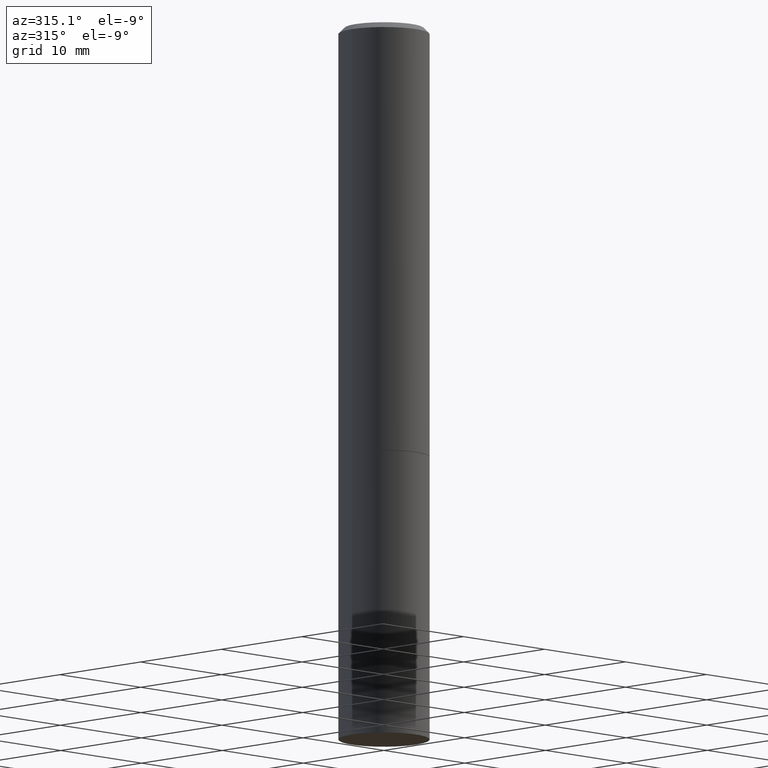
[diagram: clean part render]
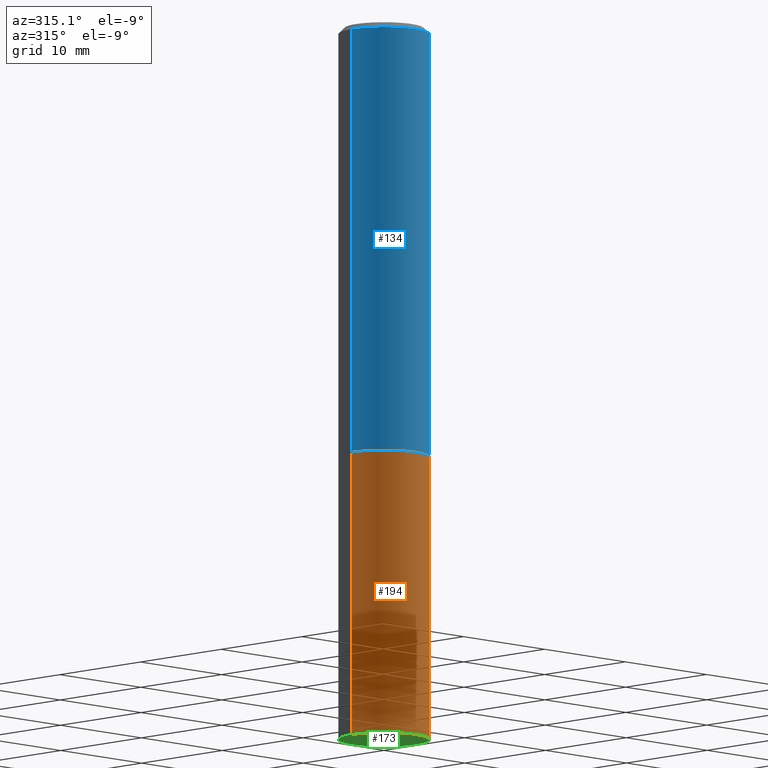
[diagram: same view with three faces highlighted in distinct colors, each labeled with its STEP entity id]
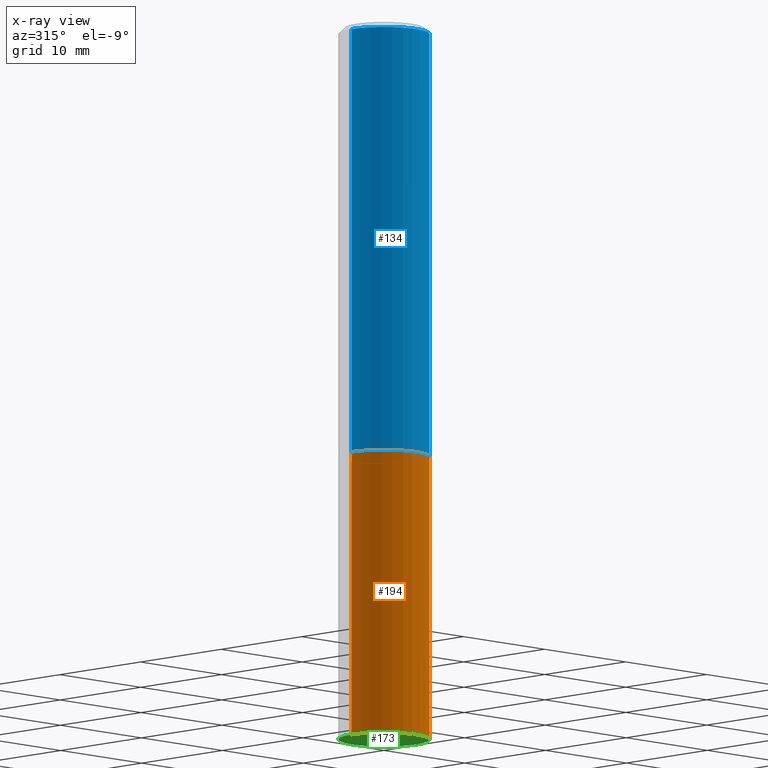
[diagram: x-ray of the same camera — body ghosted, the three highlighted faces saturated]
A machine part, auxiliary view with three faces highlighted in distinct colors.
The next image is the same camera in x-ray (body ghosted, the three faces saturated) — at least one of them is partly hidden behind the body in this view.
Their STEP definitions:

[orange] entity #194 — the highlighted cylindrical surface (partial cylindrical patch) has radius 4.0005 mm, axis along (-0, 0, 1).
#3 = DIRECTION ( 'NONE',  ( 1.000000000000000000, -6.982962677686265922E-15, 4.876176775795935232E-29 ) ) ;
#17 = FACE_OUTER_BOUND ( 'NONE', #26, .T. ) ;
#26 = EDGE_LOOP ( 'NONE', ( #250, #336, #200, #149 ) ) ;
#29 = CARTESIAN_POINT ( 'NONE',  ( -0.1575000000000000011, -5.822483814998842744E-15, -1.496000000000000441 ) ) ;
#44 = VECTOR ( 'NONE', #237, 39.37007874015748143 ) ;
#45 = DIRECTION ( 'NONE',  ( 1.000000000000000000, -6.982962677686268288E-15, 0.000000000000000000 ) ) ;
#51 = CARTESIAN_POINT ( 'NONE',  ( 0.1575000000000000011, -6.323072704644934417E-15, -1.496000000000000441 ) ) ;
#77 = EDGE_CURVE ( 'NONE', #224, #272, #184, .T. ) ;
#79 = DIRECTION ( 'NONE',  ( -2.445468806185136877E-29, 3.491481338843145188E-15, 1.000000000000000000 ) ) ;
#85 = VECTOR ( 'NONE', #79, 39.37007874015748143 ) ;
#124 = CARTESIAN_POINT ( 'NONE',  ( -0.1575000000000000011, 1.119104808822157801E-15, -7.747322767151475583E-30 ) ) ;
#127 = EDGE_CURVE ( 'NONE', #224, #230, #348, .T. ) ;
#146 = AXIS2_PLACEMENT_3D ( 'NONE', #296, #324, #267 ) ;
#149 = ORIENTED_EDGE ( 'NONE', *, *, #183, .F. ) ;
#166 = CIRCLE ( 'NONE', #257, 0.1575000000000000011 ) ;
#183 = EDGE_CURVE ( 'NONE', #272, #232, #166, .T. ) ;
#184 = LINE ( 'NONE', #124, #44 ) ;
#191 = DIRECTION ( 'NONE',  ( -2.445468806185136597E-29, 3.491481338843145583E-15, 1.000000000000000000 ) ) ;
#194 = ADVANCED_FACE ( 'NONE', ( #17 ), #278, .T. ) ;
#200 = ORIENTED_EDGE ( 'NONE', *, *, #298, .T. ) ;
#221 = DIRECTION ( 'NONE',  ( -2.445468806185136597E-29, 3.491481338843145583E-15, 1.000000000000000000 ) ) ;
#224 = VERTEX_POINT ( 'NONE', #283 ) ;
#230 = VERTEX_POINT ( 'NONE', #339 ) ;
#232 = VERTEX_POINT ( 'NONE', #51 ) ;
#237 = DIRECTION ( 'NONE',  ( -2.445468806185136877E-29, 3.491481338843145188E-15, 1.000000000000000000 ) ) ;
#250 = ORIENTED_EDGE ( 'NONE', *, *, #77, .F. ) ;
#257 = AXIS2_PLACEMENT_3D ( 'NONE', #328, #191, #45 ) ;
#267 = DIRECTION ( 'NONE',  ( 1.000000000000000000, -6.982962677686261977E-15, 0.000000000000000000 ) ) ;
#272 = VERTEX_POINT ( 'NONE', #29 ) ;
#275 = AXIS2_PLACEMENT_3D ( 'NONE', #335, #221, #3 ) ;
#278 = CYLINDRICAL_SURFACE ( 'NONE', #275, 0.1575000000000000011 ) ;
#283 = CARTESIAN_POINT ( 'NONE',  ( -0.1575000000000000011, -5.822483814998842744E-15, -2.480300000000000171 ) ) ;
#296 = CARTESIAN_POINT ( 'NONE',  ( 6.065496279980994755E-29, -8.659921164732655335E-15, -2.480300000000000171 ) ) ;
#298 = EDGE_CURVE ( 'NONE', #230, #232, #333, .T. ) ;
#324 = DIRECTION ( 'NONE',  ( -2.445468806185136597E-29, 3.491481338843145583E-15, 1.000000000000000000 ) ) ;
#328 = CARTESIAN_POINT ( 'NONE',  ( 3.658421334052965286E-29, -5.223256082909346937E-15, -1.496000000000000441 ) ) ;
#333 = LINE ( 'NONE', #343, #85 ) ;
#335 = CARTESIAN_POINT ( 'NONE',  ( 0.000000000000000000, 0.000000000000000000, 0.000000000000000000 ) ) ;
#336 = ORIENTED_EDGE ( 'NONE', *, *, #127, .T. ) ;
#339 = CARTESIAN_POINT ( 'NONE',  ( 0.1575000000000000011, -9.759737786468242027E-15, -2.480300000000000171 ) ) ;
#343 = CARTESIAN_POINT ( 'NONE',  ( 0.1575000000000000011, -1.099816621735586889E-15, 7.679978421878598033E-30 ) ) ;
#348 = CIRCLE ( 'NONE', #146, 0.1575000000000000011 ) ;

[blue] entity #134 — the highlighted cylindrical surface (partial cylindrical patch) has radius 4.0005 mm, axis along (-0, 0, 1).
#4 = ORIENTED_EDGE ( 'NONE', *, *, #106, .F. ) ;
#7 = VERTEX_POINT ( 'NONE', #11 ) ;
#11 = CARTESIAN_POINT ( 'NONE',  ( 0.1574999999999999456, -6.319581223306091410E-15, -1.495000000000000329 ) ) ;
#24 = CARTESIAN_POINT ( 'NONE',  ( 4.890937612370281041E-31, -6.982962677686302702E-17, -0.02000000000000003511 ) ) ;
#30 = EDGE_LOOP ( 'NONE', ( #4, #52, #175, #177 ) ) ;
#33 = CIRCLE ( 'NONE', #54, 0.1574999999999997791 ) ;
#52 = ORIENTED_EDGE ( 'NONE', *, *, #102, .T. ) ;
#54 = AXIS2_PLACEMENT_3D ( 'NONE', #24, #56, #197 ) ;
#56 = DIRECTION ( 'NONE',  ( -2.445468806185136597E-29, 3.491481338843145583E-15, 1.000000000000000000 ) ) ;
#67 = DIRECTION ( 'NONE',  ( -2.445468806185136597E-29, 3.491481338843145583E-15, 1.000000000000000000 ) ) ;
#73 = CYLINDRICAL_SURFACE ( 'NONE', #130, 0.1574999999999998901 ) ;
#75 = DIRECTION ( 'NONE',  ( 1.000000000000000000, -6.982962677686266711E-15, 4.876176775795935793E-29 ) ) ;
#80 = CARTESIAN_POINT ( 'NONE',  ( -0.1574999999999999456, -1.525692305351525222E-15, -1.495000000000000329 ) ) ;
#100 = DIRECTION ( 'NONE',  ( -2.445468806185136597E-29, 3.491481338843145583E-15, 1.000000000000000000 ) ) ;
#102 = EDGE_CURVE ( 'NONE', #342, #7, #137, .T. ) ;
#106 = EDGE_CURVE ( 'NONE', #342, #344, #128, .T. ) ;
#128 = LINE ( 'NONE', #292, #136 ) ;
#130 = AXIS2_PLACEMENT_3D ( 'NONE', #304, #100, #75 ) ;
#132 = VECTOR ( 'NONE', #276, 39.37007874015748143 ) ;
#134 = ADVANCED_FACE ( 'NONE', ( #303 ), #73, .T. ) ;
#136 = VECTOR ( 'NONE', #214, 39.37007874015748143 ) ;
#137 = CIRCLE ( 'NONE', #305, 0.1574999999999999456 ) ;
#160 = DIRECTION ( 'NONE',  ( 1.000000000000000000, -6.982962677686270655E-15, 0.000000000000000000 ) ) ;
#175 = ORIENTED_EDGE ( 'NONE', *, *, #347, .T. ) ;
#177 = ORIENTED_EDGE ( 'NONE', *, *, #246, .F. ) ;
#197 = DIRECTION ( 'NONE',  ( 1.000000000000000000, -6.982962677686266711E-15, 0.000000000000000000 ) ) ;
#199 = CARTESIAN_POINT ( 'NONE',  ( 0.1574999999999998901, -1.099816621735586297E-15, 7.679978421878593829E-30 ) ) ;
#214 = DIRECTION ( 'NONE',  ( -2.445468806185136877E-29, 3.491481338843145188E-15, 1.000000000000000000 ) ) ;
#228 = CARTESIAN_POINT ( 'NONE',  ( 0.1574999999999997791, -1.150358061425877894E-15, -0.02000000000000003511 ) ) ;
#246 = EDGE_CURVE ( 'NONE', #344, #260, #33, .T. ) ;
#260 = VERTEX_POINT ( 'NONE', #228 ) ;
#276 = DIRECTION ( 'NONE',  ( -2.445468806185136877E-29, 3.491481338843145188E-15, 1.000000000000000000 ) ) ;
#292 = CARTESIAN_POINT ( 'NONE',  ( -0.1574999999999998901, 1.119104808822157012E-15, -7.747322767151471379E-30 ) ) ;
#303 = FACE_OUTER_BOUND ( 'NONE', #30, .T. ) ;
#304 = CARTESIAN_POINT ( 'NONE',  ( 0.000000000000000000, 0.000000000000000000, 0.000000000000000000 ) ) ;
#305 = AXIS2_PLACEMENT_3D ( 'NONE', #350, #67, #160 ) ;
#337 = LINE ( 'NONE', #199, #132 ) ;
#342 = VERTEX_POINT ( 'NONE', #80 ) ;
#344 = VERTEX_POINT ( 'NONE', #365 ) ;
#347 = EDGE_CURVE ( 'NONE', #7, #260, #337, .T. ) ;
#350 = CARTESIAN_POINT ( 'NONE',  ( 3.655975865246779683E-29, -5.219764601570503930E-15, -1.495000000000000329 ) ) ;
#365 = CARTESIAN_POINT ( 'NONE',  ( -0.1574999999999997791, 1.029986994958722407E-15, -0.02000000000000003511 ) ) ;

[green] entity #173 — the highlighted planar face has unit normal (0, -0, -1).
#6 = EDGE_CURVE ( 'NONE', #230, #224, #355, .T. ) ;
#112 = DIRECTION ( 'NONE',  ( -2.445468806185136597E-29, 3.491481338843145583E-15, 1.000000000000000000 ) ) ;
#114 = ORIENTED_EDGE ( 'NONE', *, *, #6, .F. ) ;
#127 = EDGE_CURVE ( 'NONE', #224, #230, #348, .T. ) ;
#131 = ORIENTED_EDGE ( 'NONE', *, *, #127, .F. ) ;
#140 = CARTESIAN_POINT ( 'NONE',  ( 6.065496279980994755E-29, -8.659921164732655335E-15, -2.480300000000000171 ) ) ;
#146 = AXIS2_PLACEMENT_3D ( 'NONE', #296, #324, #267 ) ;
#165 = CARTESIAN_POINT ( 'NONE',  ( 1.099816621735647434E-15, 0.1574999999999913136, -2.480300000000001059 ) ) ;
#167 = FACE_OUTER_BOUND ( 'NONE', #364, .T. ) ;
#172 = DIRECTION ( 'NONE',  ( 1.000000000000000000, -6.982962677686261977E-15, 0.000000000000000000 ) ) ;
#173 = ADVANCED_FACE ( 'NONE', ( #167 ), #330, .T. ) ;
#195 = AXIS2_PLACEMENT_3D ( 'NONE', #165, #219, #331 ) ;
#209 = AXIS2_PLACEMENT_3D ( 'NONE', #140, #112, #172 ) ;
#219 = DIRECTION ( 'NONE',  ( 2.438088387897960049E-29, -3.491481338843145188E-15, -1.000000000000000000 ) ) ;
#224 = VERTEX_POINT ( 'NONE', #283 ) ;
#230 = VERTEX_POINT ( 'NONE', #339 ) ;
#267 = DIRECTION ( 'NONE',  ( 1.000000000000000000, -6.982962677686261977E-15, 0.000000000000000000 ) ) ;
#283 = CARTESIAN_POINT ( 'NONE',  ( -0.1575000000000000011, -5.822483814998842744E-15, -2.480300000000000171 ) ) ;
#296 = CARTESIAN_POINT ( 'NONE',  ( 6.065496279980994755E-29, -8.659921164732655335E-15, -2.480300000000000171 ) ) ;
#324 = DIRECTION ( 'NONE',  ( -2.445468806185136597E-29, 3.491481338843145583E-15, 1.000000000000000000 ) ) ;
#330 = PLANE ( 'NONE',  #195 ) ;
#331 = DIRECTION ( 'NONE',  ( -1.000000000000000000, 6.982962677686265922E-15, -4.876176775795935793E-29 ) ) ;
#339 = CARTESIAN_POINT ( 'NONE',  ( 0.1575000000000000011, -9.759737786468242027E-15, -2.480300000000000171 ) ) ;
#348 = CIRCLE ( 'NONE', #146, 0.1575000000000000011 ) ;
#355 = CIRCLE ( 'NONE', #209, 0.1575000000000000011 ) ;
#364 = EDGE_LOOP ( 'NONE', ( #114, #131 ) ) ;